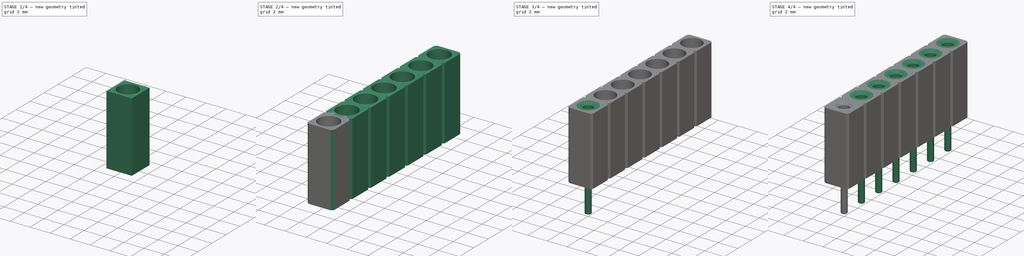
[diagram: build sequence overview — one tinted view per stage of 4, left to right]
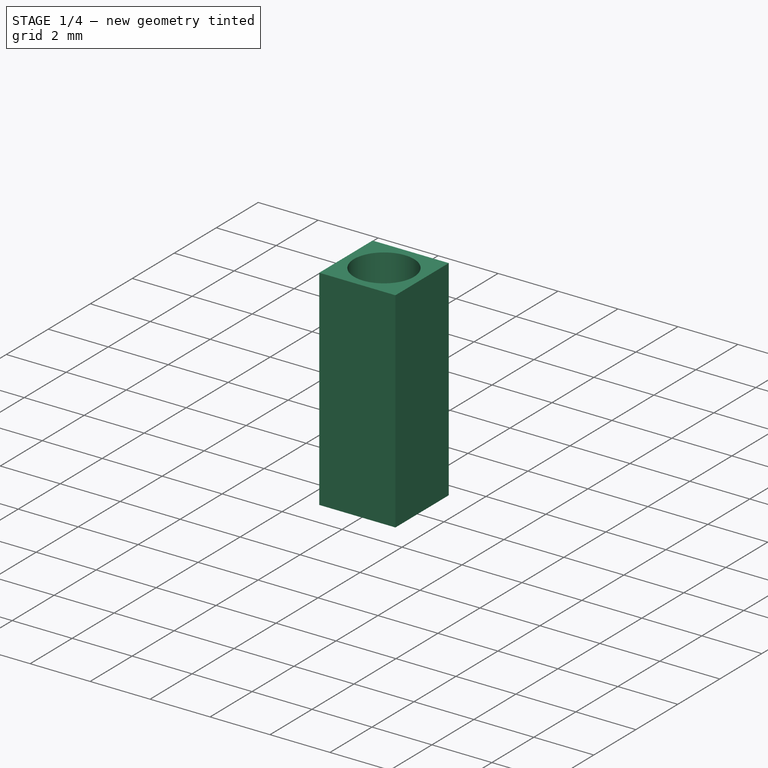
[diagram: stage 1 of 4 — iso view after this stage's code; geometry added in this stage tinted green]
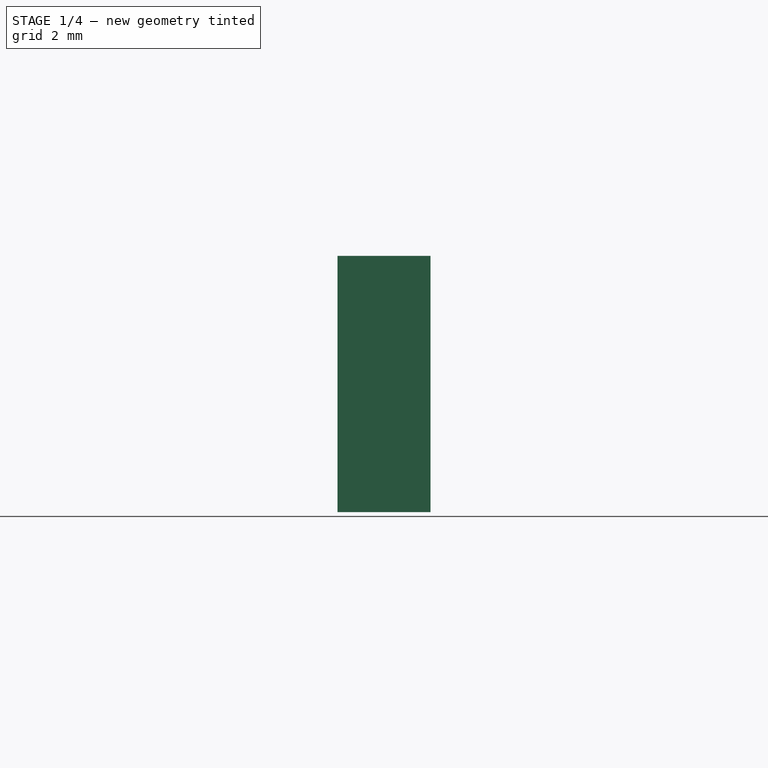
[diagram: stage 1 of 4 — front view after this stage's code; geometry added in this stage tinted green]
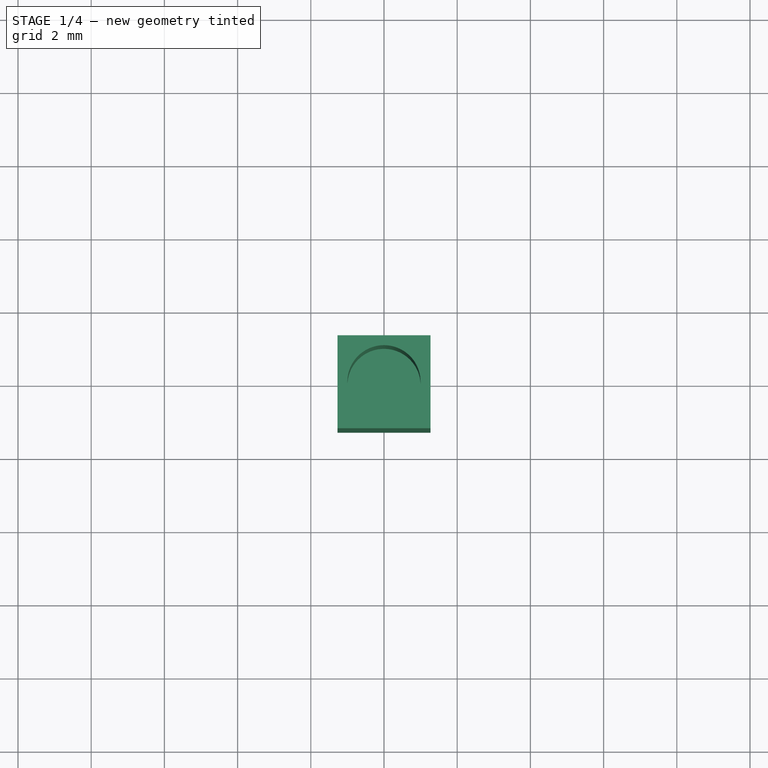
[diagram: stage 1 of 4 — top view after this stage's code; geometry added in this stage tinted green]
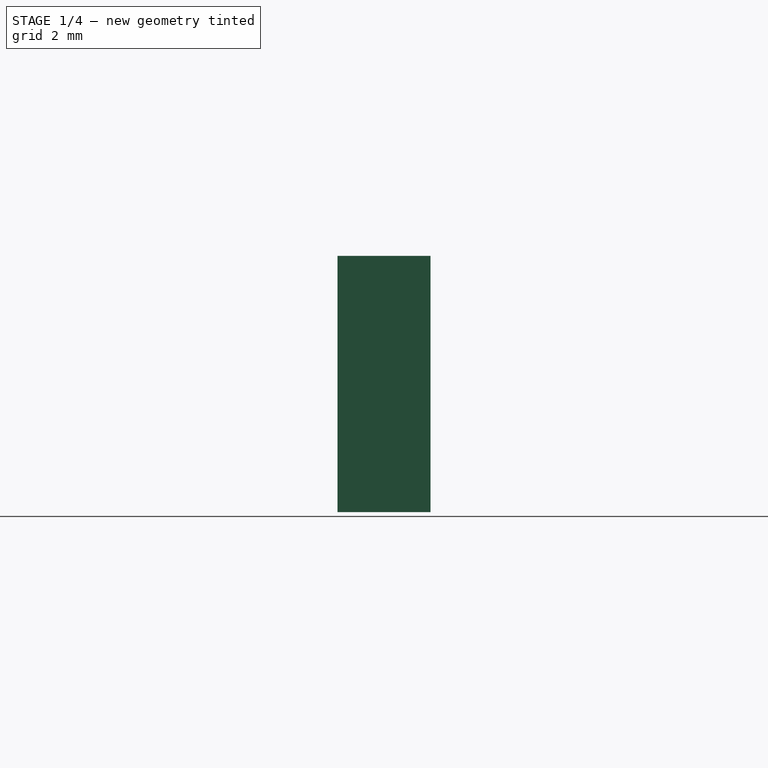
[diagram: stage 1 of 4 — right view after this stage's code; geometry added in this stage tinted green]
FCSTD DOCUMENT  (FreeCAD 2022.709R26244 +5001 (Git))
Label: PinSocketGenerator
License: Creative Commons Attribution-NoDerivatives
LicenseURL: http://creativecommons.org/licenses/by-nd/4.0/
objects: Sketcher::SketchObject×5, PartDesign::Pocket×3, PartDesign::Chamfer×2, PartDesign::LinearPattern×2, PartDesign::Body×2, PartDesign::Pad×1, PartDesign::Revolution×1, PartDesign::Fillet×1, Spreadsheet::Sheet×1, App::Part×1
note: 37 computed .brp shape members not serialized (recipe doc carries the construction recipe); baked Part::Feature solids carry a one-line shape summary decoded from their .brp

FEATURE [Sketcher::SketchObject] Sketch
  ArcFitTolerance = 1e-06
  AttachmentSupport = -> [XY_Plane]
  FullyConstrained = true
  MapMode = 5
  Support = -> [XY_Plane]
  TreeRank = 11
  sketch-geometry (5):
    g0: LineSegment StartX=-1.27 StartY=-1.27 StartZ=0 EndX=-1.27 EndY=1.27 EndZ=0
    g1: LineSegment StartX=-1.27 StartY=1.27 StartZ=0 EndX=1.27 EndY=1.27 EndZ=0
    g2: LineSegment StartX=1.27 StartY=1.27 StartZ=0 EndX=1.27 EndY=-1.27 EndZ=0
    g3: LineSegment StartX=1.27 StartY=-1.27 StartZ=0 EndX=-1.27 EndY=-1.27 EndZ=0
    g4: GeomPoint [constr] X=0 Y=0 Z=0
  constraints (12):
    c: Coincident(g0,g1)
    c: Coincident(g1,g2)
    c: Coincident(g2,g3)
    c: Coincident(g3,g0)
    c: Horizontal(g1)
    c: Horizontal(g3)
    c: Vertical(g0)
    c: Vertical(g2)
    c: Symmetric(g1,g0,g4)
    c: Coincident(g4,g-1)
    c: Equal(g1,g0)
    c: DistanceX(g1,g1) = 2.54
FEATURE [PartDesign::Pad] Pad
  AddSubType = 0
  AlongSketchNormal = false
  CheckUpToFaceLimits = true
  ClaimChildren = false
  Direction = (0,0,1)
  Fit = 0
  FitJoin = 0
  InnerFit = 0
  InnerFitJoin = 0
  InnerTaperAngle = 0
  InnerTaperAngleRev = 0
  Length = 7
  Length2 = 100
  Linearize = true
  NewSolid = false
  Profile = -> Sketch
  Refine = true
  Suppress = false
  TreeRank = 12
  Type = 0
  _ProfileBasedVersion = 1
  expr: Length = Spreadsheet.high
FEATURE [Sketcher::SketchObject] Sketch001
  ArcFitTolerance = 1e-06
  AttachmentSupport = -> [Pad]
  FullyConstrained = true
  MapMode = 5
  Placement = pos=(0,0,7) rot=(0,0,1;0rad)
  Support = -> [Pad]
  TreeRank = 13
  sketch-geometry (1):
    g0: Circle CenterX=0 CenterY=0 CenterZ=0 NormalX=0 NormalY=0 NormalZ=1 AngleXU=0 Radius=1
  constraints (2):
    c: Coincident(g0,g-1)
    c: Diameter(g0) = 2
FEATURE [PartDesign::Pocket] Pocket
  AddSubType = 1
  BaseFeature = -> Pad
  CheckUpToFaceLimits = true
  ClaimChildren = false
  Fit = 0
  FitJoin = 0
  InnerFit = 0
  InnerFitJoin = 0
  InnerTaperAngle = 0
  InnerTaperAngleRev = 0
  Length = 5.8
  Length2 = 100
  Linearize = true
  NewSolid = false
  Profile = -> Sketch001
  Refine = true
  Suppress = false
  TreeRank = 14
  Type = 0
  _ProfileBasedVersion = 1
  _Version = 1
  expr: Length = Spreadsheet.high - 1.2
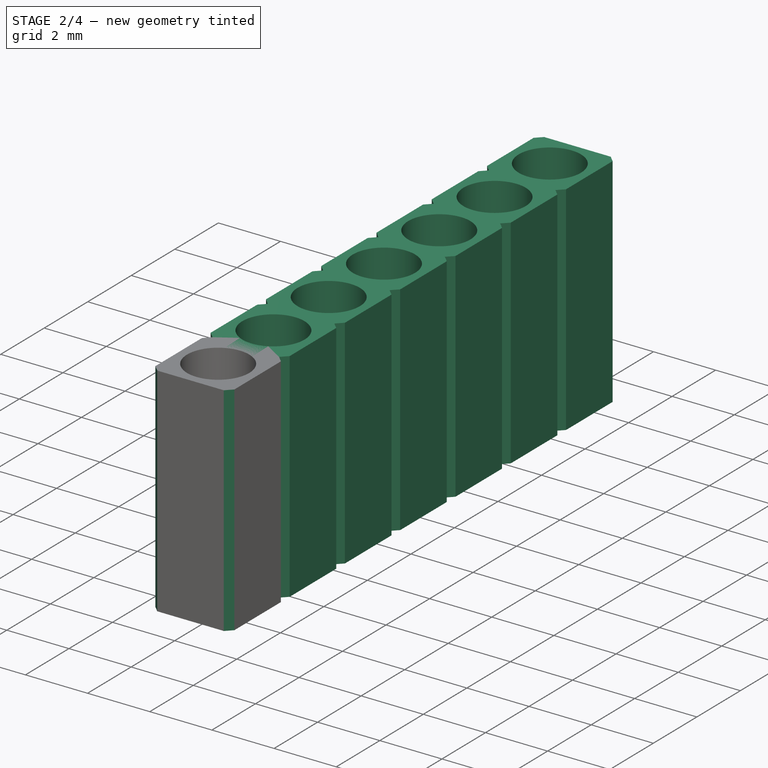
[diagram: stage 2 of 4 — iso view after this stage's code; geometry added in this stage tinted green]
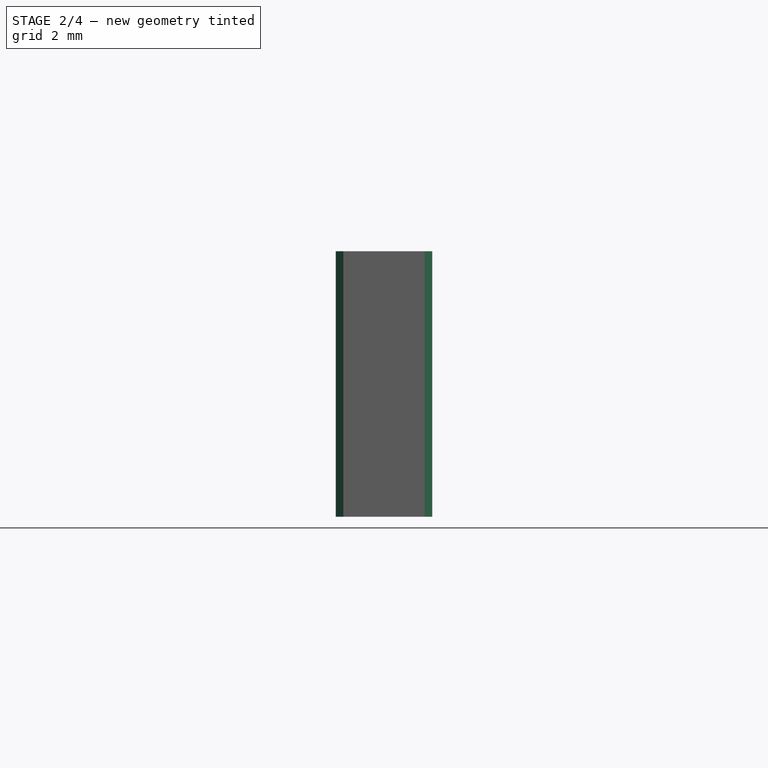
[diagram: stage 2 of 4 — front view after this stage's code; geometry added in this stage tinted green]
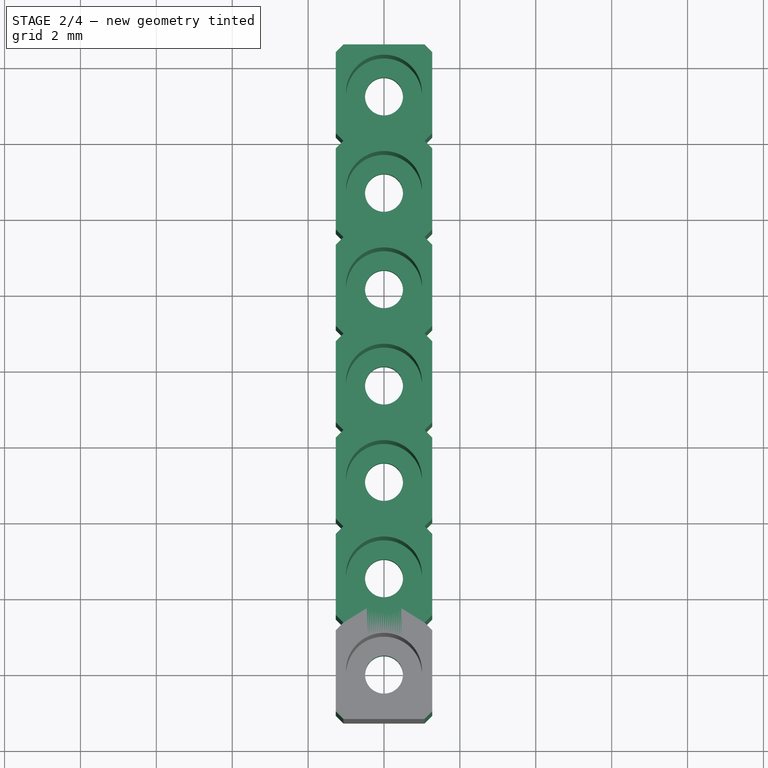
[diagram: stage 2 of 4 — top view after this stage's code; geometry added in this stage tinted green]
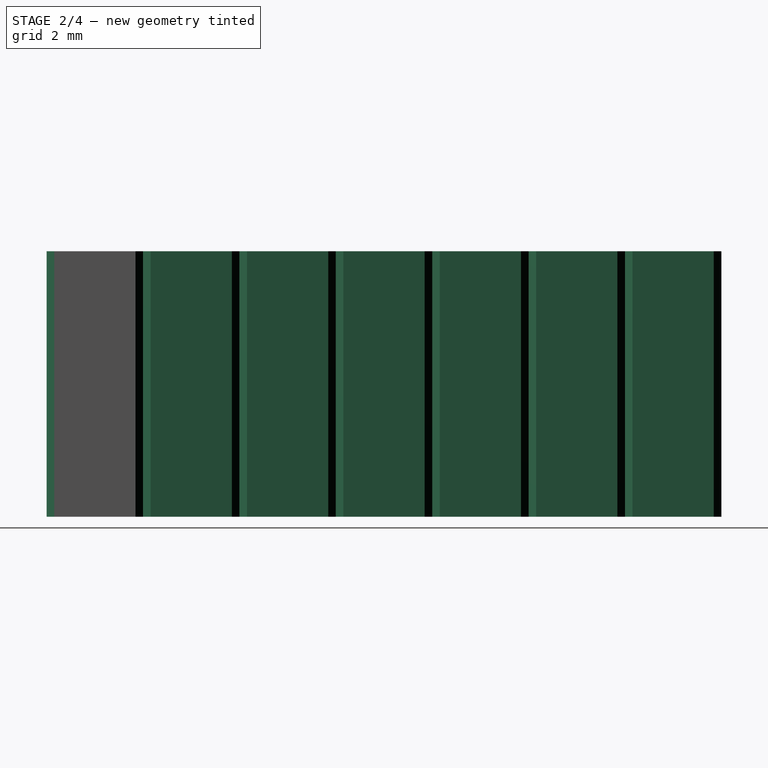
[diagram: stage 2 of 4 — right view after this stage's code; geometry added in this stage tinted green]
FEATURE [PartDesign::Chamfer] Chamfer
  AddSubType = 0
  Angle = 45
  Base = -> Pocket [Edge8,Edge5,Edge1,Edge2]
  BaseFeature = -> Pocket
  ChamferType = 0
  FlipDirection = false
  NewSolid = false
  Refine = true
  Size = 0.2
  Size2 = 1
  SupportTransform = false
  Suppress = false
  TreeRank = 15
FEATURE [Sketcher::SketchObject] Sketch002
  ArcFitTolerance = 1e-06
  AttachmentSupport = -> [Chamfer]
  FullyConstrained = true
  MapMode = 5
  Placement = pos=(0,0,1.2) rot=(0,0,1;0rad)
  Support = -> [Chamfer]
  TreeRank = 16
  sketch-geometry (1):
    g0: Circle CenterX=0 CenterY=0 CenterZ=0 NormalX=0 NormalY=0 NormalZ=1 AngleXU=0 Radius=0.5
  constraints (2):
    c: Coincident(g0,g-1)
    c: Diameter(g0) = 1
FEATURE [PartDesign::Pocket] Pocket001
  AddSubType = 1
  BaseFeature = -> Chamfer
  CheckUpToFaceLimits = true
  ClaimChildren = false
  Fit = 0
  FitJoin = 0
  InnerFit = 0
  InnerFitJoin = 0
  InnerTaperAngle = 0
  InnerTaperAngleRev = 0
  Length = 6
  Length2 = 100
  Linearize = true
  NewSolid = false
  Profile = -> Sketch002
  Refine = true
  Suppress = false
  TreeRank = 17
  Type = 1
  _ProfileBasedVersion = 1
  _Version = 1
FEATURE [PartDesign::Body] Body001  label="Connector"
  AutoGroupSolids = false
  ClaimAllChildren = false
  ExportMode = 0
  Group = -> [Sketch003,Revolution,Sketch004,Pocket002,Chamfer001,Fillet,LinearPattern]
  Origin = -> Origin001
  SingleSolid = true
  Tip = -> LinearPattern
  TreeRank = 27
  _ExportChildren = -> [Revolution,Pocket002,Chamfer001,Fillet,LinearPattern]
  _GroupVersion = 1
FEATURE [PartDesign::LinearPattern] LinearPattern001
  AddSubType = 0
  BaseFeature = -> Pocket001
  CopyShape = false
  Direction = -> Y_Axis
  Length = 15.24
  NewSolid = false
  Occurrences = 7
  OriginalSubs = -> [Pad,Pocket,Chamfer,Pocket001]
  Originals = -> [Pad,Pocket,Chamfer,Pocket001]
  ParallelTransform = true
  Refine = true
  SubTransform = true
  Suppress = false
  TreeRank = 36
  _Version = 3
  expr: Length = (Spreadsheet.pinNumber - 1) * 2.54mm
  expr: Occurrences = Spreadsheet.pinNumber
FEATURE [PartDesign::Body] Body  label="MainBody"
  AutoGroupSolids = false
  ClaimAllChildren = false
  ExportMode = 0
  Group = -> [Sketch,Pad,Sketch001,Pocket,Chamfer,Sketch002,Pocket001,LinearPattern001]
  Origin = -> Origin
  SingleSolid = true
  Tip = -> LinearPattern001
  TreeRank = 10
  _ExportChildren = -> [Pad,Pocket,Chamfer,Pocket001,LinearPattern001]
  _GroupVersion = 1
FEATURE [App::Part] Part  label="PinSocket_7.0 mm_1x07_P2.54mm_Vertical"
  ClaimAllChildren = false
  ExportMode = 1
  Group = -> [Body,Body001]
  Origin = -> Origin002
  TreeRank = 39
  _ExportChildren = -> [Body,Body001]
  _GroupVersion = 1
  expr: Label = <<PinSocket_>> + str(Spreadsheet.high) + <<_1x0>> + str(Spreadsheet.pinNumber) + <<_P2.54mm_Vertical>>
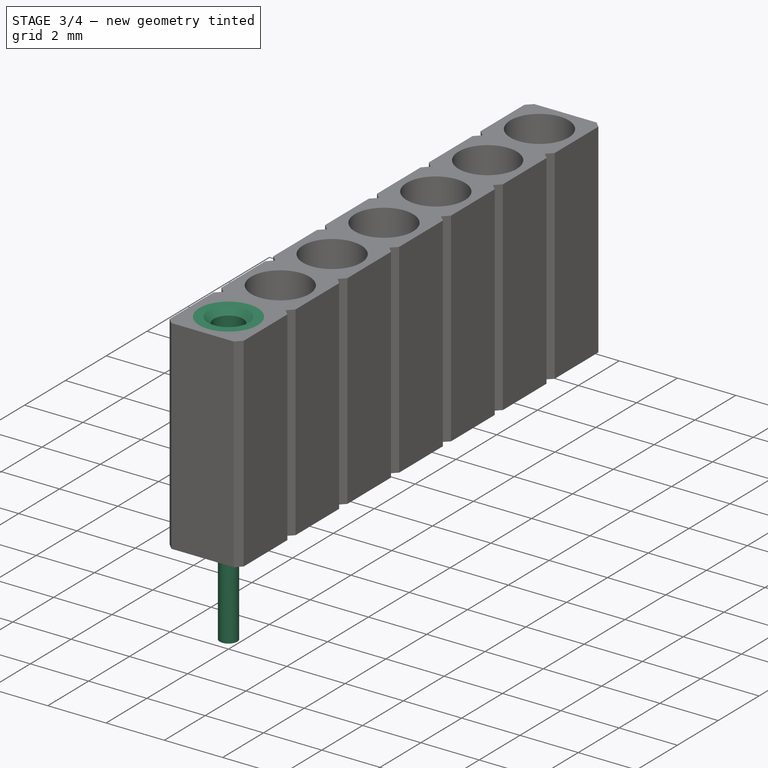
[diagram: stage 3 of 4 — iso view after this stage's code; geometry added in this stage tinted green]
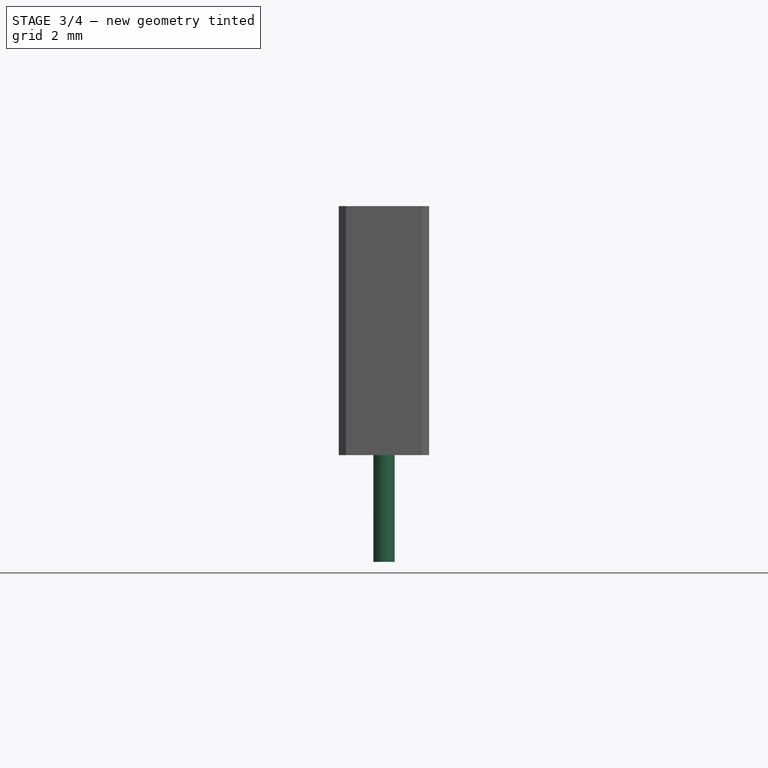
[diagram: stage 3 of 4 — front view after this stage's code; geometry added in this stage tinted green]
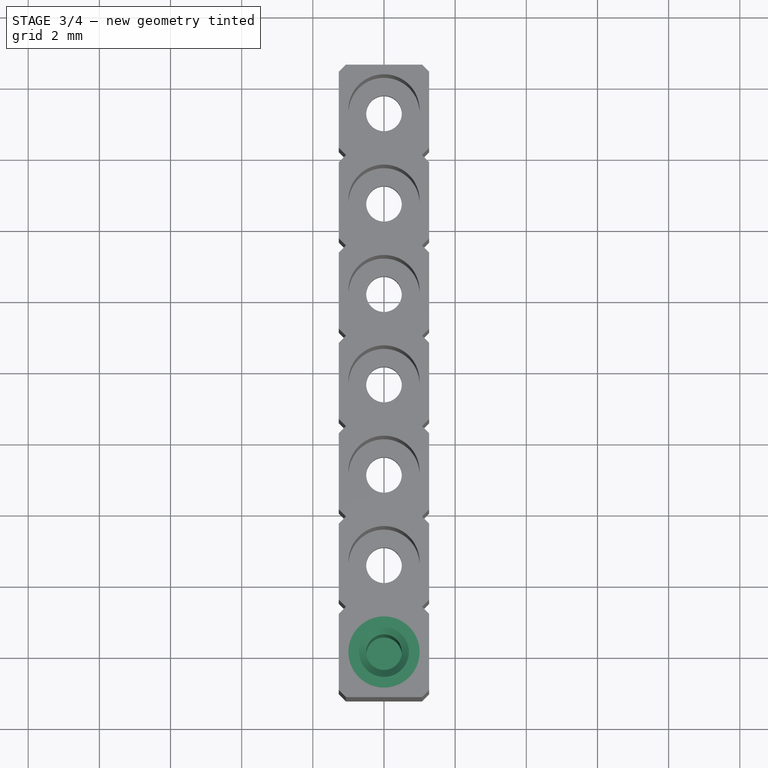
[diagram: stage 3 of 4 — top view after this stage's code; geometry added in this stage tinted green]
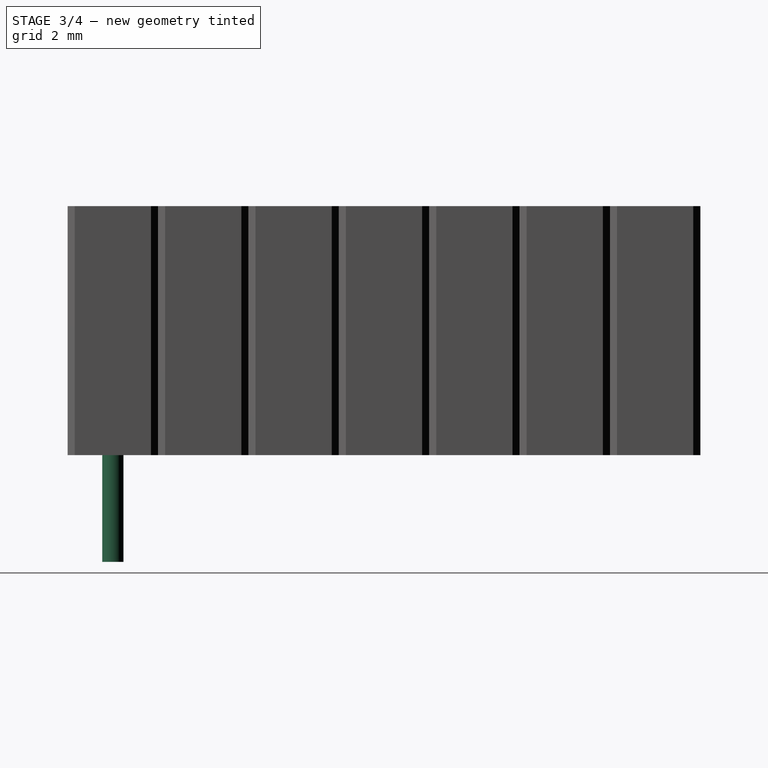
[diagram: stage 3 of 4 — right view after this stage's code; geometry added in this stage tinted green]
FEATURE [Sketcher::SketchObject] Sketch003
  ArcFitTolerance = 1e-06
  AttachmentSupport = -> [YZ_Plane001]
  FullyConstrained = true
  MapMode = 5
  Placement = pos=(0,0,0) rot=(0.57735,0.57735,0.57735;2.0944rad)
  Support = -> [YZ_Plane001]
  TreeRank = 28
  expr: Constraints[17] = Spreadsheet.high
  sketch-geometry (6):
    g0: LineSegment StartX=0 StartY=-3 StartZ=0 EndX=-0.3 EndY=-3 EndZ=0
    g1: LineSegment StartX=-0.3 StartY=-3 StartZ=0 EndX=-0.3 EndY=-1.3e-15 EndZ=0
    g2: LineSegment StartX=-1 StartY=0.7 StartZ=0 EndX=-0.3 EndY=-1.1e-15 EndZ=0
    g3: LineSegment StartX=-1 StartY=0.7 StartZ=0 EndX=-1 EndY=7 EndZ=0
    g4: LineSegment StartX=-1 StartY=7 StartZ=0 EndX=-9e-16 EndY=7 EndZ=0
    g5: LineSegment StartX=-9e-16 StartY=7 StartZ=0 EndX=0 EndY=-3 EndZ=0
  constraints (18):
    c: PointOnObject(g0,g-2)
    c: Coincident(g1,g0)
    c: Vertical(g1)
    c: Coincident(g2,g1)
    c: Coincident(g2,g3)
    c: Vertical(g3)
    c: Coincident(g3,g4)
    c: Horizontal(g4)
    c: Coincident(g4,g5)
    c: Coincident(g5,g0)
    c: PointOnObject(g4,g-2)
    c: Horizontal(g0)
    c: DistanceX(g3,g4) = 1
    c: PointOnObject(g1,g-1)
    c: DistanceX(g1,g-1) = 0.3
    c: Angle(g2,g1) = 2.35619
    c: DistanceY(g0,g-1) = 3
    c: DistanceY(g4) = 7
FEATURE [PartDesign::Revolution] Revolution
  AddSubType = 0
  Angle = 360
  Axis = (-2e-16,3e-16,1)
  Base = (0,0,0)
  ClaimChildren = false
  Fit = 0
  FitJoin = 0
  InnerFit = 0
  InnerFitJoin = 0
  Linearize = true
  NewSolid = false
  Placement = pos=(0,0,0) rot=(0.57735,0.57735,0.57735;2.0944rad)
  Profile = -> Sketch003
  ReferenceAxis = -> Sketch003 [V_Axis]
  Refine = true
  Suppress = false
  TreeRank = 29
  _ProfileBasedVersion = 1
FEATURE [Sketcher::SketchObject] Sketch004
  ArcFitTolerance = 1e-06
  AttachmentSupport = -> [Revolution]
  FullyConstrained = true
  MapMode = 5
  Placement = pos=(-3.9e-15,2.7e-15,7) rot=(0,0,-1;1.5708rad)
  Support = -> [Revolution]
  TreeRank = 30
  sketch-geometry (1):
    g0: Circle CenterX=0 CenterY=0 CenterZ=0 NormalX=0 NormalY=0 NormalZ=1 AngleXU=0 Radius=0.5
  constraints (2):
    c: Coincident(g0,g-1)
    c: Diameter(g0) = 1
FEATURE [PartDesign::Pocket] Pocket002
  AddSubType = 1
  BaseFeature = -> Revolution
  CheckUpToFaceLimits = true
  ClaimChildren = false
  Fit = 0
  FitJoin = 0
  InnerFit = 0
  InnerFitJoin = 0
  InnerTaperAngle = 0
  InnerTaperAngleRev = 0
  Length = 5.4
  Length2 = 100
  Linearize = true
  NewSolid = false
  Placement = pos=(0,0,0) rot=(0.57735,0.57735,0.57735;2.0944rad)
  Profile = -> Sketch004
  Refine = true
  Suppress = false
  TreeRank = 31
  Type = 0
  _ProfileBasedVersion = 1
  _Version = 1
  expr: Length = Spreadsheet.high - 1.6
FEATURE [PartDesign::Chamfer] Chamfer001
  AddSubType = 0
  Angle = 45
  Base = -> Pocket002 [Edge8]
  BaseFeature = -> Pocket002
  ChamferType = 0
  FlipDirection = false
  NewSolid = false
  Placement = pos=(0,0,0) rot=(0.57735,0.57735,0.57735;2.0944rad)
  Refine = true
  Size = 0.2
  Size2 = 1
  SupportTransform = false
  Suppress = false
  TreeRank = 32
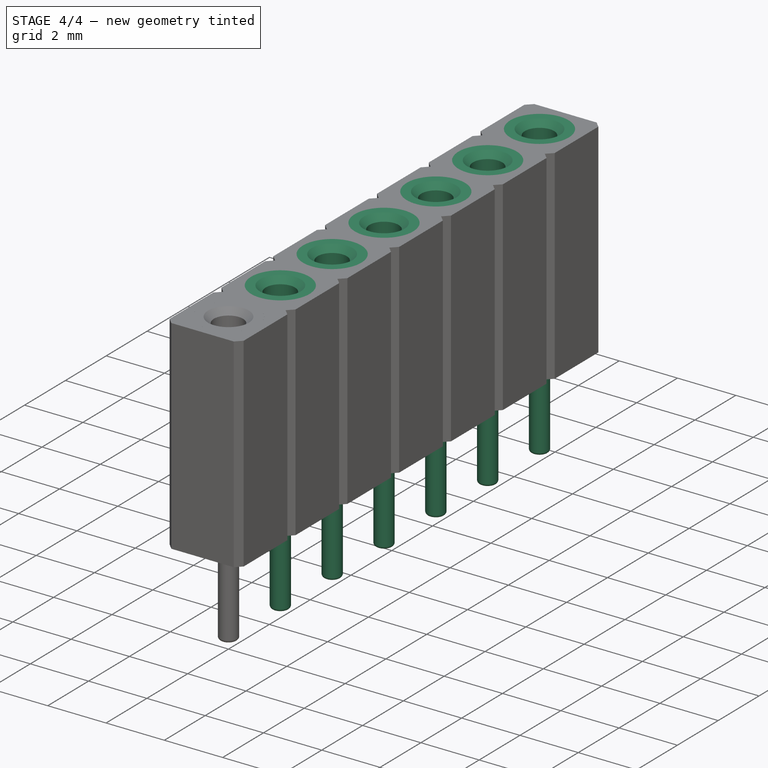
[diagram: stage 4 of 4 — iso view after this stage's code; geometry added in this stage tinted green]
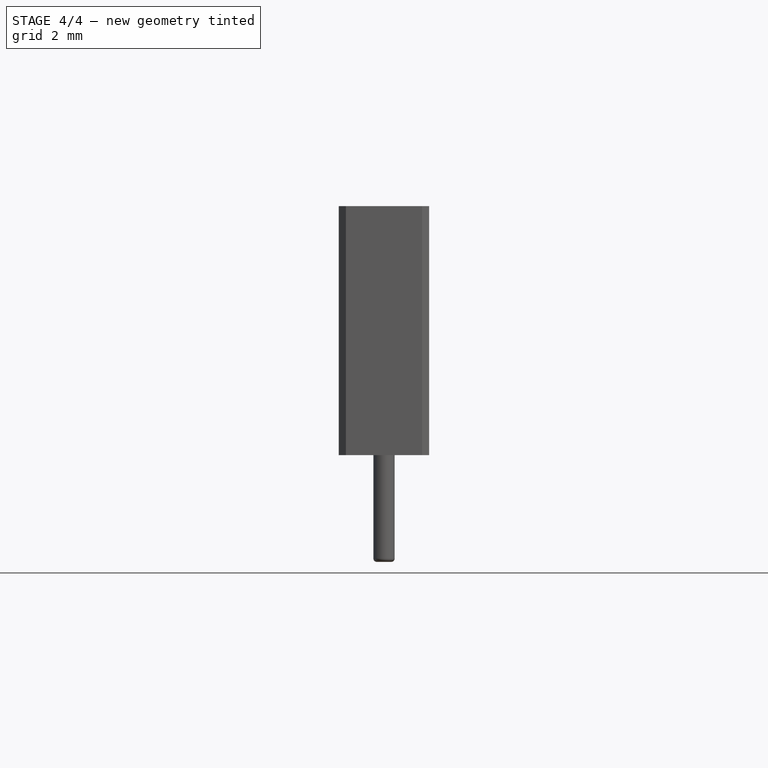
[diagram: stage 4 of 4 — front view after this stage's code; geometry added in this stage tinted green]
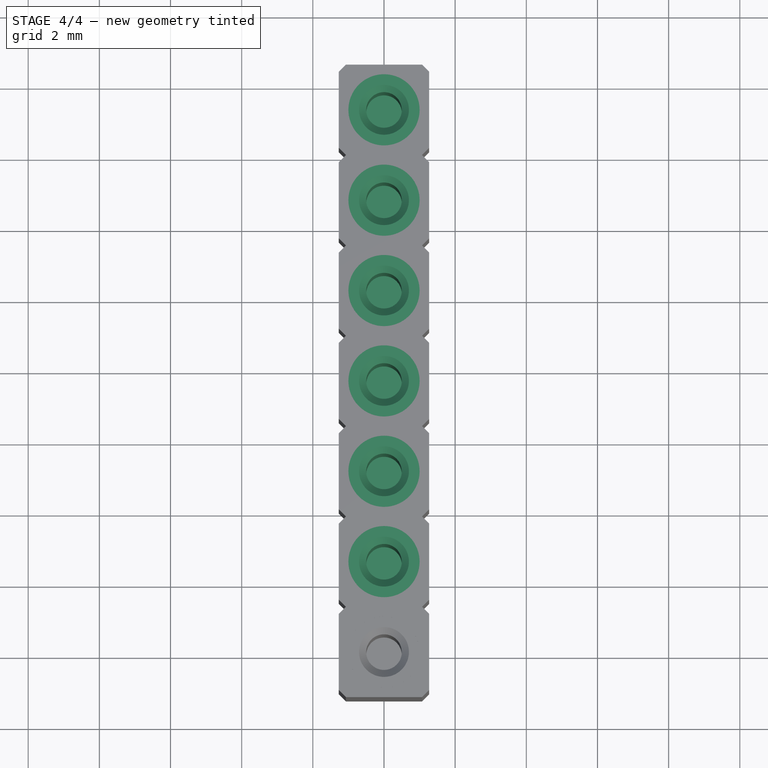
[diagram: stage 4 of 4 — top view after this stage's code; geometry added in this stage tinted green]
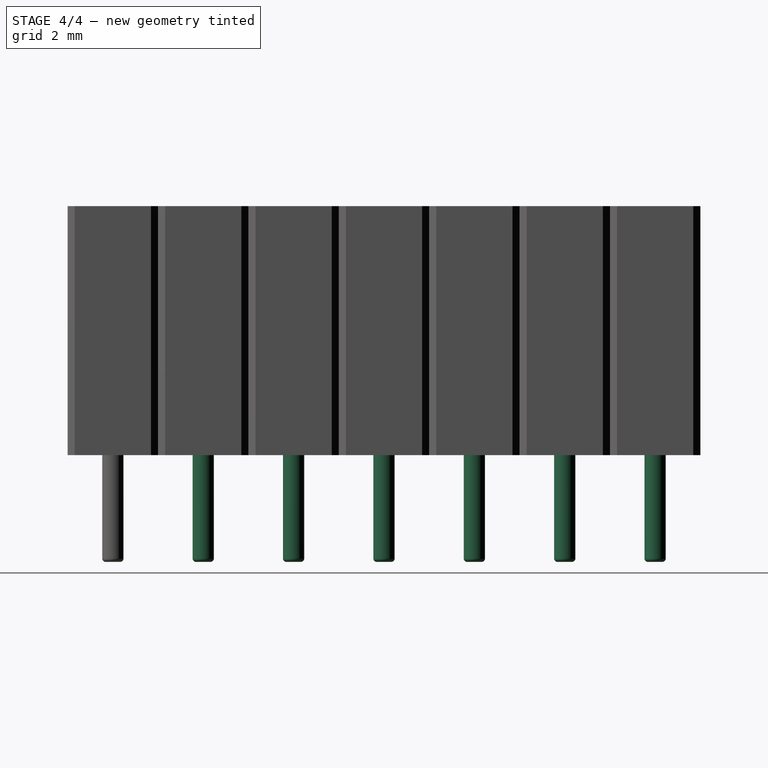
[diagram: stage 4 of 4 — right view after this stage's code; geometry added in this stage tinted green]
FEATURE [PartDesign::Fillet] Fillet
  AddSubType = 0
  Base = -> Chamfer001 [Edge11]
  BaseFeature = -> Chamfer001
  NewSolid = false
  Placement = pos=(0,0,0) rot=(0.57735,0.57735,0.57735;2.0944rad)
  Radius = 0.1
  Refine = true
  SupportTransform = false
  Suppress = false
  TreeRank = 33
FEATURE [Spreadsheet::Sheet] Spreadsheet
  PythonMode = false
  ShowCells = 0
  TreeRank = 34
  cells = D4=Pin number; E4(pinNumber)=7; D5=Socket high; E5(high)==7mm
FEATURE [PartDesign::LinearPattern] LinearPattern
  AddSubType = 0
  BaseFeature = -> Fillet
  CopyShape = false
  Direction = -> Sketch003 [H_Axis]
  Length = 15.24
  NewSolid = false
  Occurrences = 7
  OriginalSubs = -> [Revolution,Pocket002,Chamfer001,Fillet]
  Originals = -> [Revolution,Pocket002,Chamfer001,Fillet]
  ParallelTransform = true
  Placement = pos=(0,0,0) rot=(0.57735,0.57735,0.57735;2.0944rad)
  Refine = true
  SubTransform = true
  Suppress = false
  TreeRank = 35
  _Version = 3
  expr: Length = 2.54mm * (Spreadsheet.pinNumber - 1)
  expr: Occurrences = Spreadsheet.pinNumber
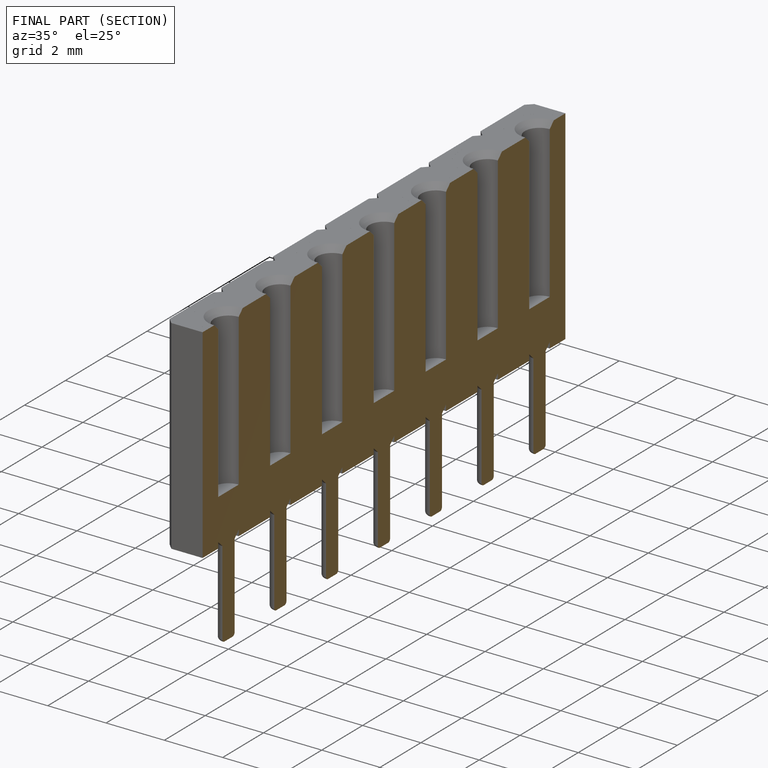
[diagram: finished part — half-section view (interior)]
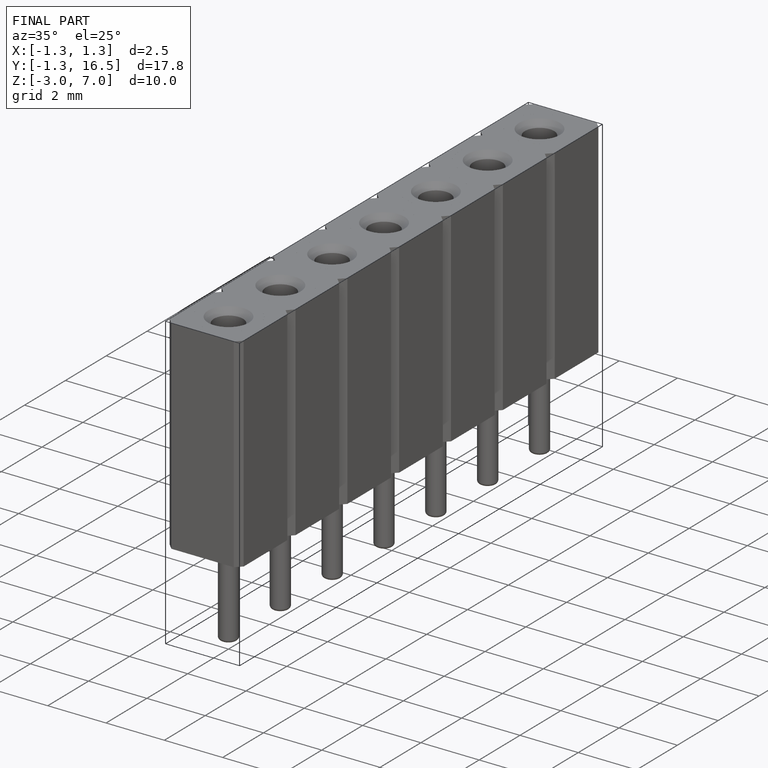
[diagram: finished part — iso view with bounding-box wireframe]
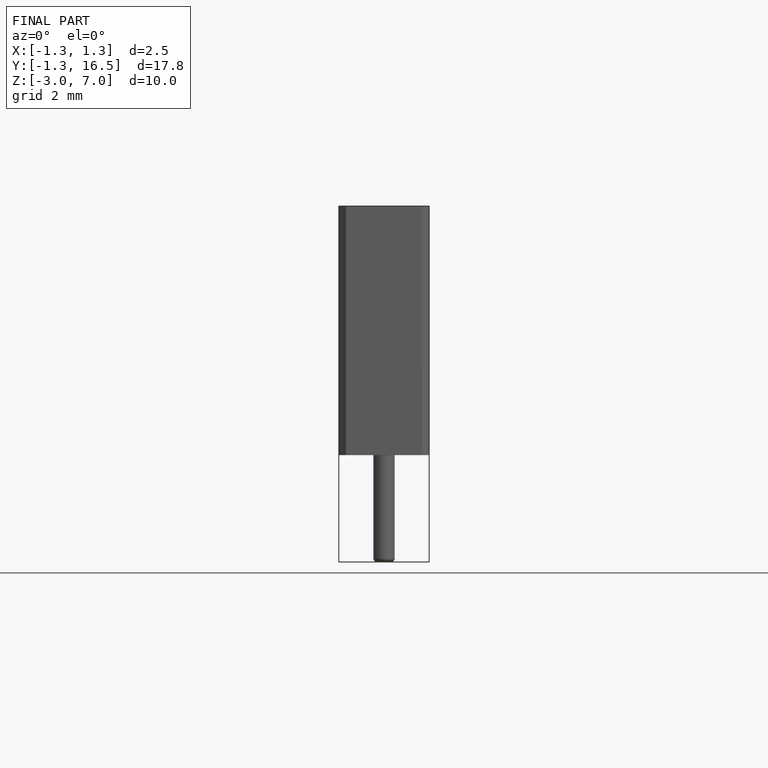
[diagram: finished part — front view with bounding-box wireframe]
